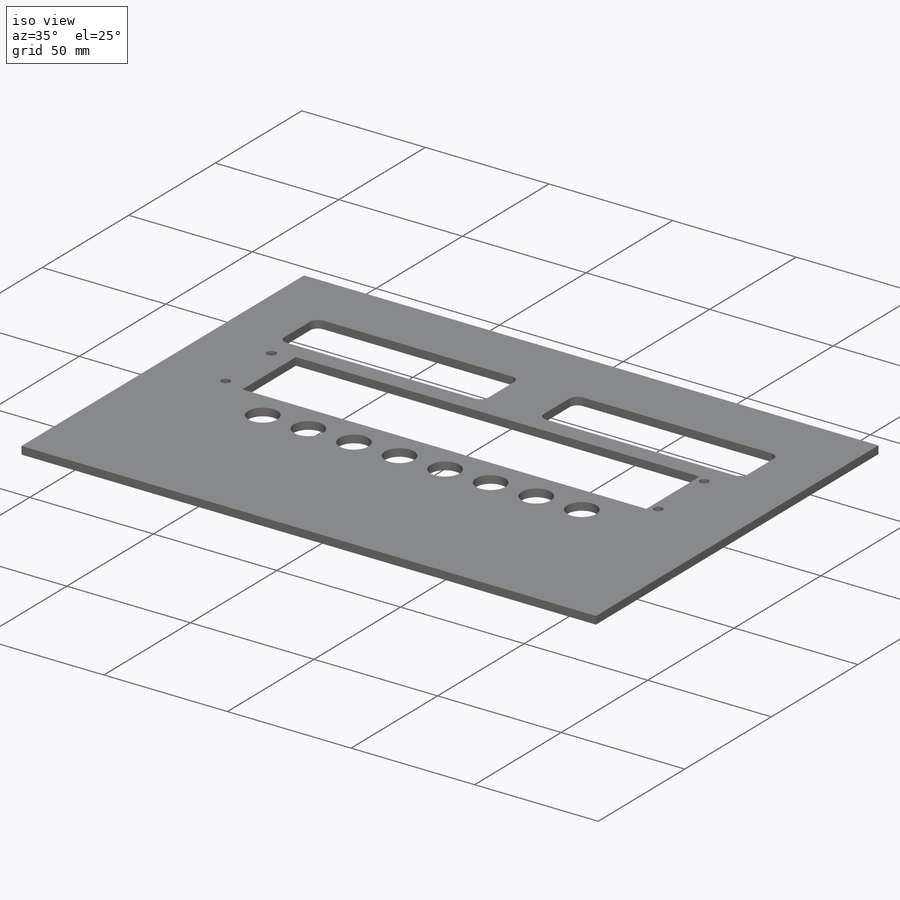
[diagram: iso view]
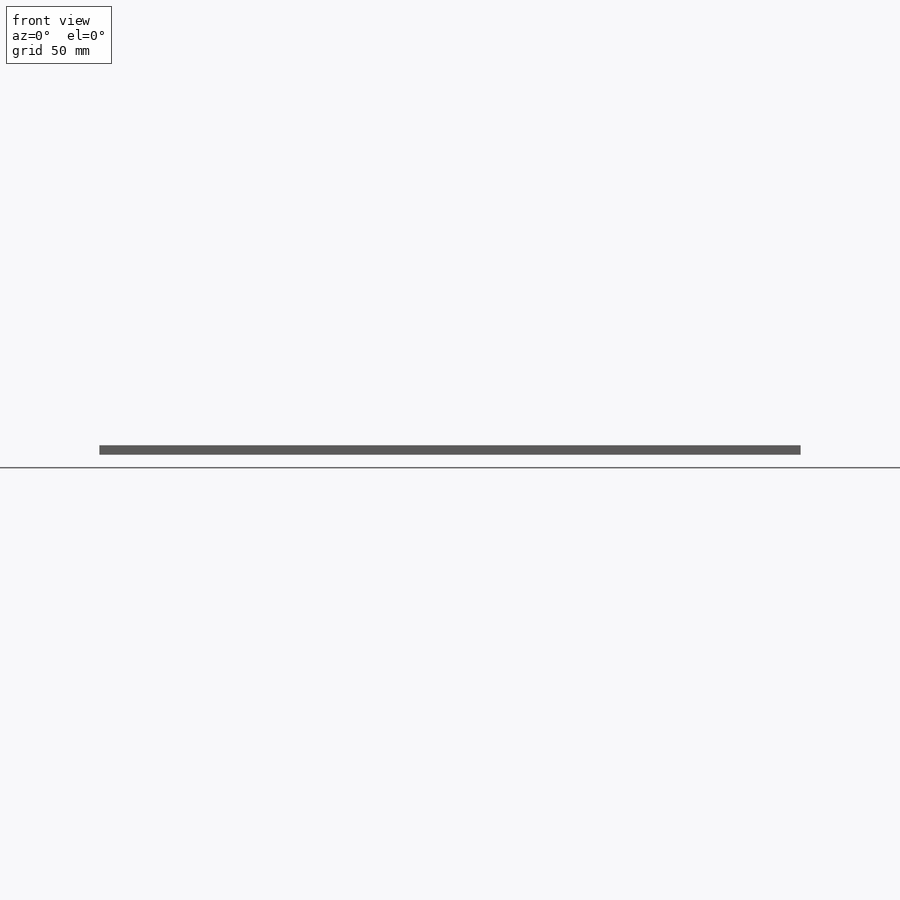
[diagram: front view]
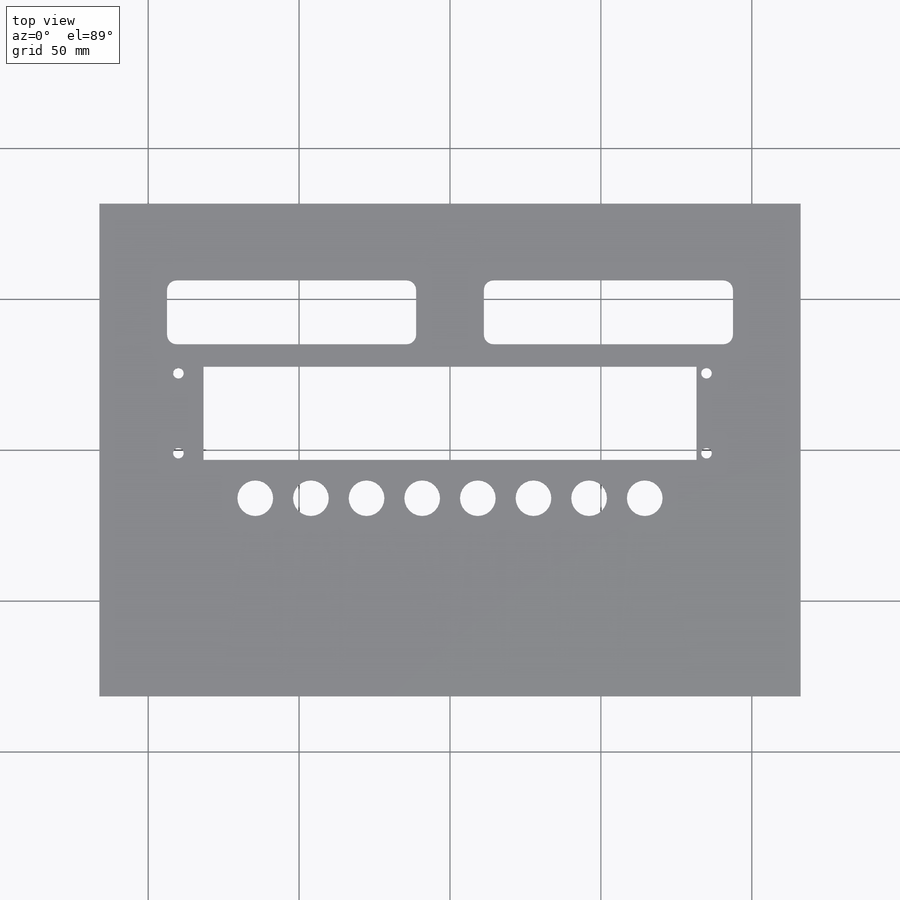
[diagram: top view]
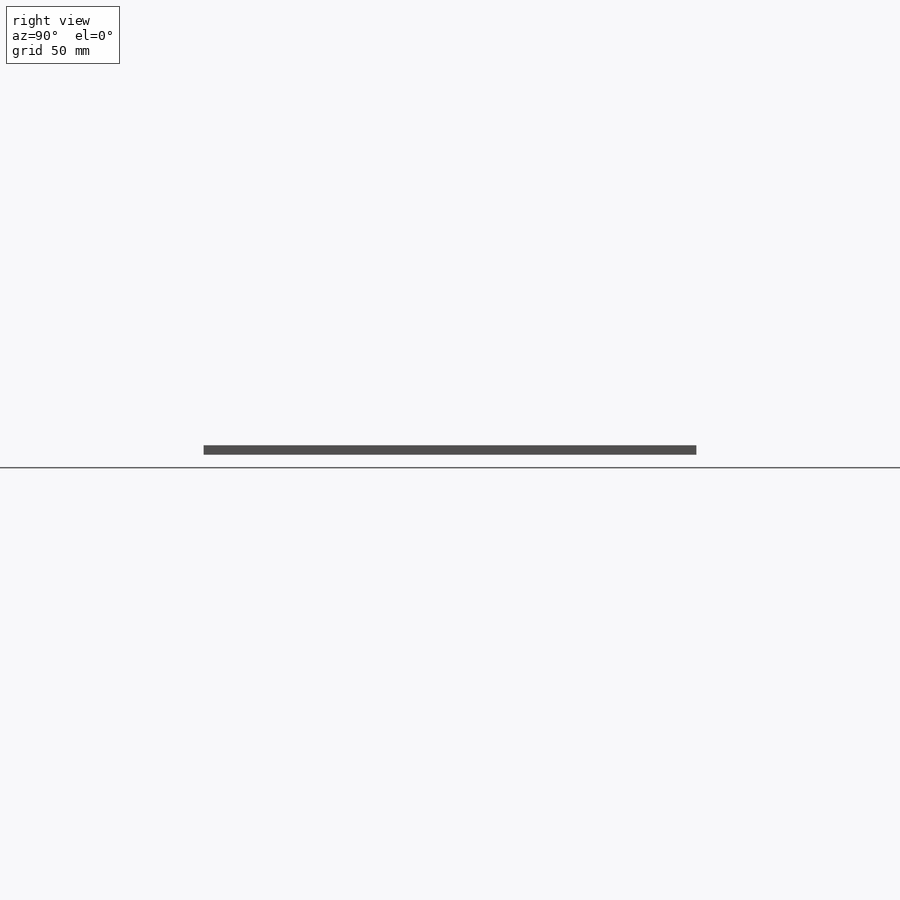
[diagram: right view]
SOLIDWORKS PART (.sldprt)
format: sldprt  version: not decoded by parser v0  size: 310,272 bytes
history: native  units: mm
features: sketch x5, cut_extrude x4, pattern_linear x2, material x1, extrude x1, fillet x1 (+13 scaffold rows collapsed)
feature tree (27):
  scaffold x13  (default folders/planes/origin — collapsed)
  material  "Material <not specified>"
  sketch  "Sketch1"  dims[D1=163.2712mm D2=232.41mm]
  extrude  "Boss-Extrude1"  Depth=3.175mm
  sketch  "Sketch2"  dims[D1=21.209mm D2=82.55mm D3=~22.436666mm D4=25.4mm]
  cut_extrude  "Cut-Extrude1"  [1 undecoded]
  fillet  "Fillet1"  Radius=3.175mm
  pattern_linear  "LPattern1"  Count1=2 Count2=1 Spacing1=104.986658mm Spacing2=2.54mm
  sketch  "Sketch3"  dims[D1=~163.40074mm D2=30.8991mm D3=0.0mm D4=50.8mm]
  cut_extrude  "Cut-Extrude2"  [1 undecoded]
  sketch  "Sketch4"  dims[c1.D1=~3.50012mm c1.D2=~8.30072mm c1.D3=~12.370959mm c2.D3=90.0deg c3.D3=~2.19964mm]
  cut_extrude  "Cut-Extrude3"  [1 undecoded]
  pattern_linear  "LPattern2"  Count1=2 Count2=2 Spacing1=175.00092mm Spacing2=26.49982mm
  sketch  "Sketch5"  dims[D3=~11.84148mm D1=12.7mm D4=0.0mm D5=~109.25302mm D2=8.0]
  cut_extrude  "Cut-Extrude4"  [1 undecoded]
decode coverage: 9 of 13 modeling features carry decoded parameters
note: ~ marks probable driven/reference dimensions
note: 4 parameter values undecoded
summary: no parameter record found for 4 features
note: suppression state not decoded; provenance and decode notes live in map.json
